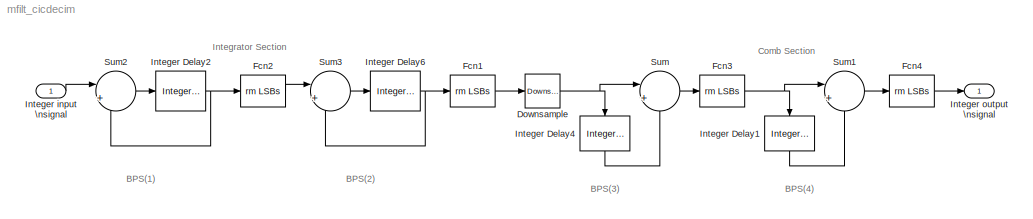
MODEL mfilt_cicdecim
KIND model
CONFIG AbsTol = auto
CONFIG FixedStep = auto
CONFIG MaxStep = auto
CONFIG MinStep = auto
CONFIG RelTol = 1e-3
CONFIG Solver = ode45
CONFIG SolverMode = Auto
CONFIG StartTime = 0.0
CONFIG StopTime = 10.0
BLOCK [Reference] Downsample  REF=dspsigops/Downsample
  N = R
  Ports = [1, 1]
  SourceBlock = dspsigops/Downsample
  SourceType = Downsample
  fmode = Maintain input frame size
  ic = 0
  phase = 0
  smode = Allow multirate
BLOCK [Fcn] Fcn1
  Expr = rm LSBs
BLOCK [Fcn] Fcn2
  Expr = rm LSBs
BLOCK [Fcn] Fcn3
  Expr = rm LSBs
BLOCK [Fcn] Fcn4
  Expr = rm LSBs
BLOCK [Reference] Integer Delay1  REF=dspobslib/Integer Delay
  Ports = [1, 1]
  SourceBlock = dspobslib/Integer Delay
  SourceType = Integer Delay
  delay = M
  ic = 0
  reset_popup = None
BLOCK [Reference] Integer Delay2  REF=dspobslib/Integer Delay
  Ports = [1, 1]
  SourceBlock = dspobslib/Integer Delay
  SourceType = Integer Delay
  delay = 1
  ic = 0
  reset_popup = None
BLOCK [Reference] Integer Delay4  REF=dspobslib/Integer Delay
  Ports = [1, 1]
  SourceBlock = dspobslib/Integer Delay
  SourceType = Integer Delay
  delay = M
  ic = 0
  reset_popup = None
BLOCK [Reference] Integer Delay6  REF=dspobslib/Integer Delay
  Ports = [1, 1]
  SourceBlock = dspobslib/Integer Delay
  SourceType = Integer Delay
  delay = 1
  ic = 0
  reset_popup = None
BLOCK [Inport] Integer input \nsignal
BLOCK [Outport] Integer output \nsignal
BLOCK [Sum] Sum
  IconShape = round
  Inputs = |+-
  Ports = [2, 1]
BLOCK [Sum] Sum1
  IconShape = round
  Inputs = |+-
  Ports = [2, 1]
BLOCK [Sum] Sum2
  IconShape = round
  Inputs = |++
  Ports = [2, 1]
BLOCK [Sum] Sum3
  IconShape = round
  Inputs = |++
  Ports = [2, 1]
ANNOTATION (root): BPS(1)
ANNOTATION (root): BPS(2)
ANNOTATION (root): BPS(3)
ANNOTATION (root): BPS(4)
ANNOTATION (root): Comb Section
ANNOTATION (root): Integrator Section
NET Downsample:1 -> Integer Delay4:1, Sum:1
LINE Fcn1:1 -> Downsample:1
LINE Fcn2:1 -> Sum3:1
NET Fcn3:1 -> Integer Delay1:1, Sum1:1
LINE Fcn4:1 -> Integer output \nsignal:1
LINE Integer Delay1:1 -> Sum1:2
NET Integer Delay2:1 -> Fcn2:1, Sum2:2
LINE Integer Delay4:1 -> Sum:2
NET Integer Delay6:1 -> Fcn1:1, Sum3:2
LINE Integer input \nsignal:1 -> Sum2:1
LINE Sum1:1 -> Fcn4:1
LINE Sum2:1 -> Integer Delay2:1
LINE Sum3:1 -> Integer Delay6:1
LINE Sum:1 -> Fcn3:1
note: NET lines group one-source signal fan-out (src -> all destinations, sorted); 1:1 wires keep LINE
